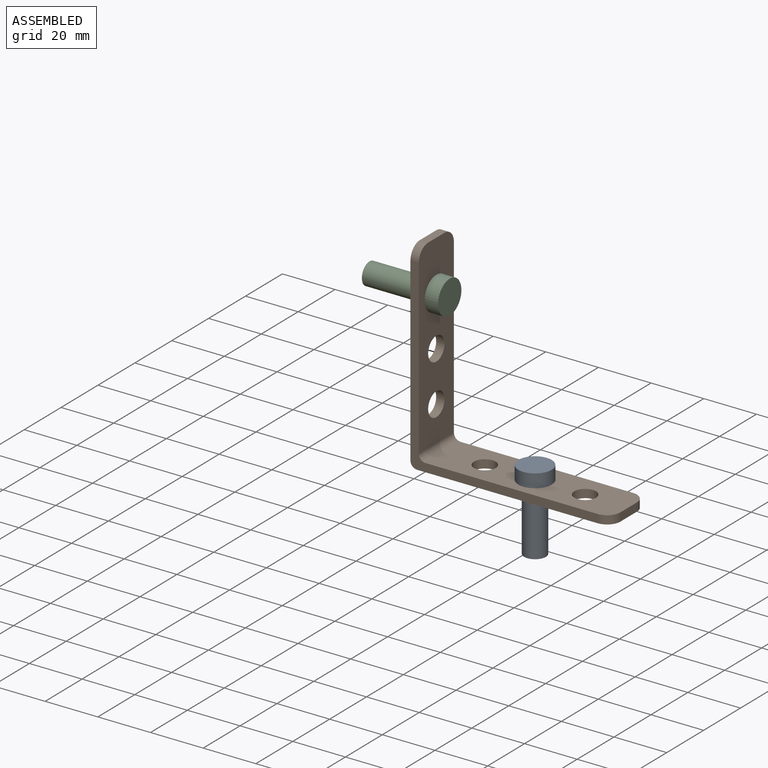
[diagram: assembled view]
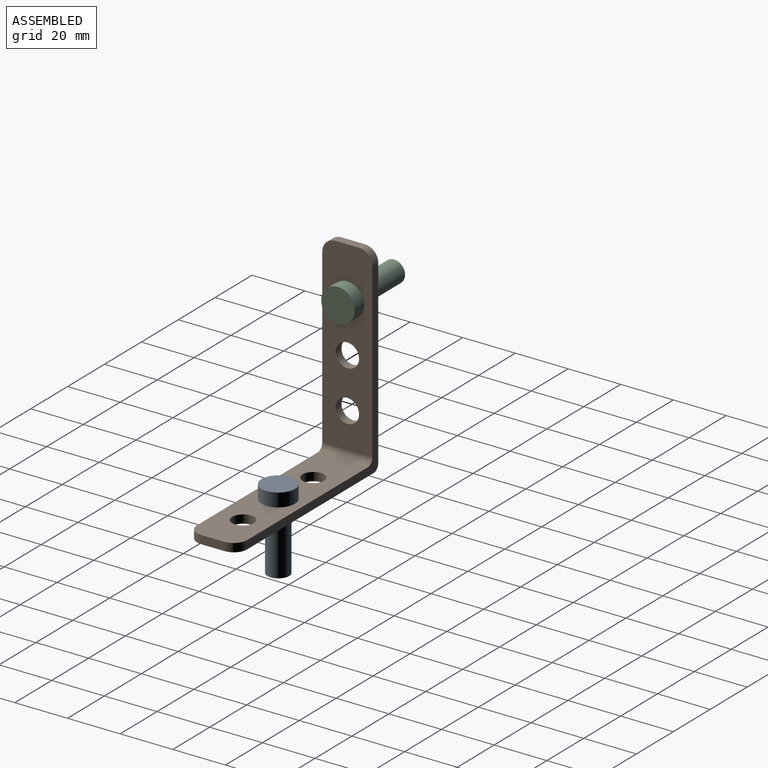
[diagram: assembled view, second angle]
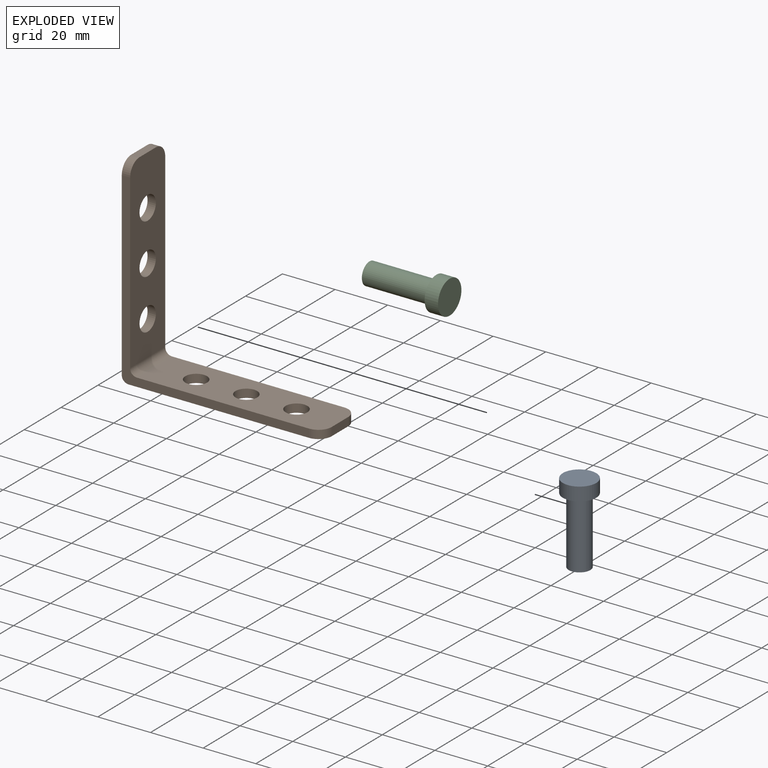
[diagram: exploded view]
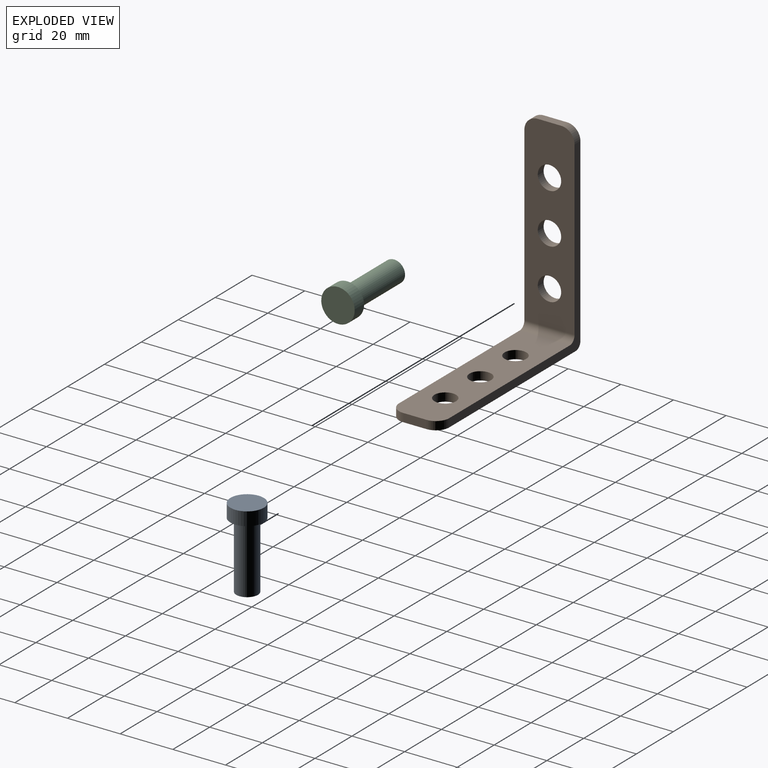
[diagram: exploded view, second angle]
ASSEMBLY  parts=3 mates=2
PART A: 5 faces, bbox 12.7x12.7x30.5 mm
  f0: cylinder r=6.35mm len=12.7mm, axis (0,0,-1), area 202.7mm2, adj f1,f2
  f1: plane 12.7x12.7mm, normal (0,0,1), area 126.7mm2, adj f0
  f2: plane 12.7x12.7mm, normal (0,0,-1), area 73.2mm2, adj f0,f3
  f3: cylinder r=4.13mm len=25.4mm, axis (0,0,1), area 658.7mm2, adj f2,f4
  f4: plane 8.26x8.26mm, normal (0,0,-1), area 53.5mm2, adj f3
PART B: 20 faces, bbox 76.2x19.1x76.2 mm
  f0: plane 73.66x19.05mm, normal (-1,0,0), area 1205.9mm2, adj f5,f6,f7,f11,f12,f13,f14,f17
  f1: plane 73.66x19.05mm, normal (0,0,-1), area 1231.6mm2, adj f2,f6,f7,f8,f9,f10,f14,f16
  f2: plane 8.89x3.18mm, normal (1,0,0), area 28.2mm2, adj f1,f3,f16,f18
  f3: plane 70.49x19.05mm, normal (0,0,1), area 1171.1mm2, adj f2,f6,f7,f8,f9,f10,f15,f16
  f4: plane 70.49x19.05mm, normal (1,0,0), area 1145.4mm2, adj f5,f6,f7,f11,f12,f13,f15,f17
  f5: plane 8.89x3.18mm, normal (0,0,1), area 28.2mm2, adj f0,f4,f17,f19
  f6: plane 71.12x71.12mm, normal (0,-1,0), area 441.5mm2, adj f0,f1,f3,f4,f14,f15,f18,f19
  f7: plane 71.12x71.12mm, normal (0,1,0), area 441.5mm2, adj f0,f1,f3,f4,f14,f15,f16,f17
  f8: cylinder r=4.13mm len=8.26mm, axis (0,0,1), area 82.3mm2, adj f1,f3
  f9: cylinder r=4.13mm len=8.26mm, axis (0,0,1), area 82.3mm2, adj f1,f3
  f10: cylinder r=4.13mm len=8.26mm, axis (0,0,1), area 82.3mm2, adj f1,f3
  f11: cylinder r=4.45mm len=8.89mm, axis (1,0,0), area 88.7mm2, adj f0,f4
  f12: cylinder r=4.45mm len=8.89mm, axis (1,0,0), area 88.7mm2, adj f0,f4
  f13: cylinder r=4.45mm len=8.89mm, axis (1,0,0), area 88.7mm2, adj f0,f4
  f14: cylinder r=2.54mm len=19.05mm, axis (0,-1,0), area 76mm2, adj f0,f1,f6,f7
  f15: cylinder r=2.54mm len=19.05mm, axis (0,-1,0), area 76mm2, adj f3,f4,f6,f7
  f16: cylinder r=5.08mm len=5.08mm, axis (0,0,1), area 25.3mm2, adj f1,f2,f3,f7
  f17: cylinder r=5.08mm len=5.08mm, axis (-1,0,0), area 25.3mm2, adj f0,f4,f5,f7
  f18: cylinder r=5.08mm len=5.08mm, axis (0,0,-1), area 25.3mm2, adj f1,f2,f3,f6
  f19: cylinder r=5.08mm len=5.08mm, axis (1,0,0), area 25.3mm2, adj f0,f4,f5,f6
PART C: same geometry as A
PLACE A t=(40.64,-9.53,3.17)mm
PLACE B at identity fixed
PLACE C rot(axis=(-0.23,0.95,-0.23),93.1deg) t=(3.18,-9.53,57.15)mm
MATE revolute B.f13 <-> C.f0  axis (1,0,0) through (3.18,-9.53,57.15)mm
MATE fastened B.f9 <-> A.f0  axis (0,0,1) through (40.64,-9.53,3.18)mm
